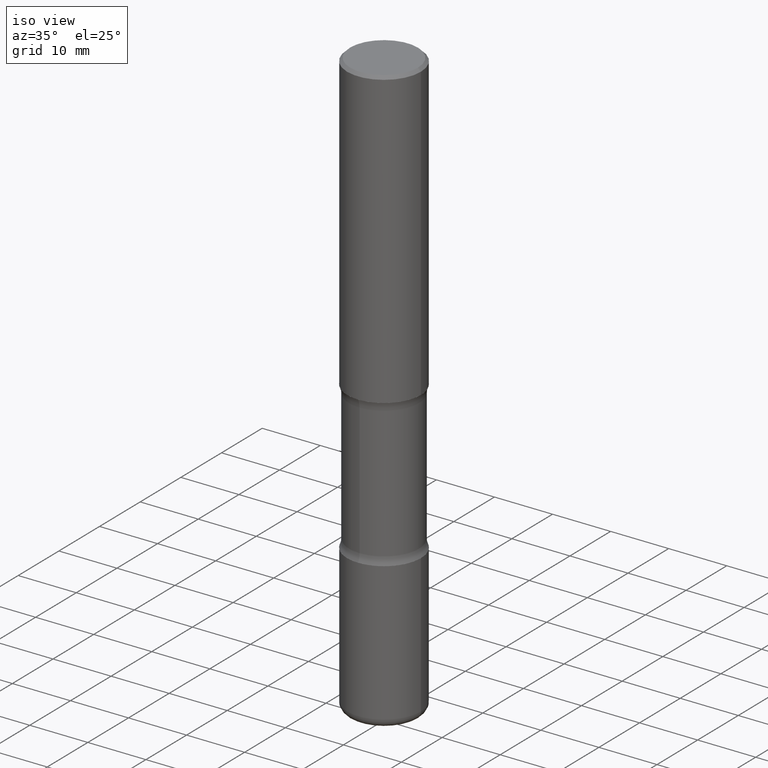
[diagram: clean part render]
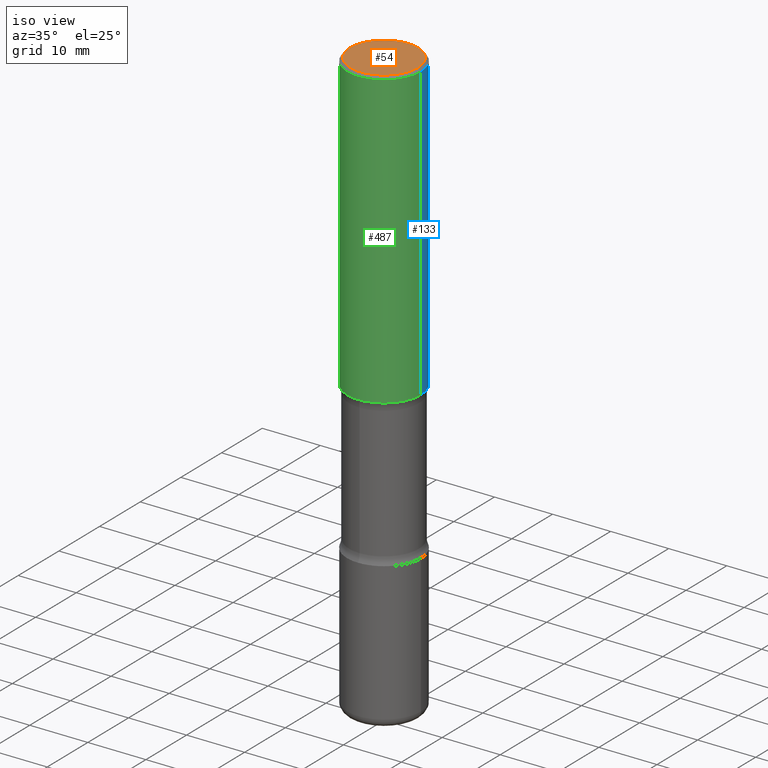
[diagram: same view with three faces highlighted in distinct colors, each labeled with its STEP entity id]
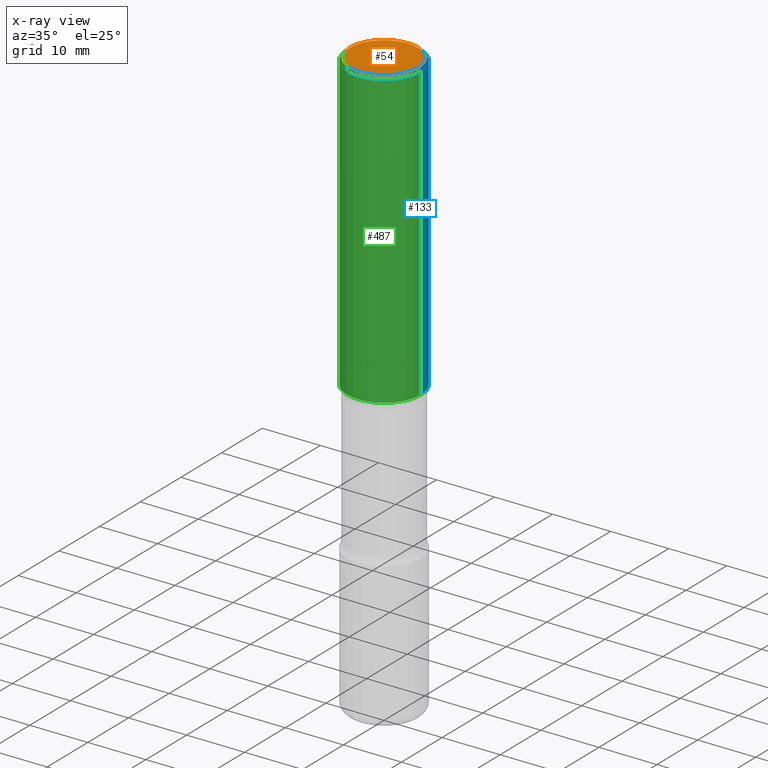
[diagram: x-ray of the same camera — body ghosted, the three highlighted faces saturated]
A machine part, iso view with three faces highlighted in distinct colors.
The next image is the same camera in x-ray (body ghosted, the three faces saturated) — at least one of them is partly hidden behind the body in this view.
Their STEP definitions:

[orange] entity #54 — the highlighted planar face has unit normal (0, -0, -1).
#54 = ADVANCED_FACE ( 'NONE', ( #369 ), #187, .F. ) ;
#59 = AXIS2_PLACEMENT_3D ( 'NONE', #378, #244, #376 ) ;
#61 = DIRECTION ( 'NONE',  ( 1.000000000000000000, -6.982962677686267499E-15, 4.876176775795936353E-29 ) ) ;
#147 = CARTESIAN_POINT ( 'NONE',  ( 1.606081415867840476E-15, 0.2299999999999998990, -8.030407079339231961E-16 ) ) ;
#187 = PLANE ( 'NONE',  #506 ) ;
#236 = AXIS2_PLACEMENT_3D ( 'NONE', #453, #449, #61 ) ;
#244 = DIRECTION ( 'NONE',  ( -2.445468806185136597E-29, 3.491481338843145583E-15, 1.000000000000000000 ) ) ;
#268 = ORIENTED_EDGE ( 'NONE', *, *, #337, .T. ) ;
#282 = DIRECTION ( 'NONE',  ( 2.438088387897960049E-29, -3.491481338843145188E-15, -1.000000000000000000 ) ) ;
#310 = CIRCLE ( 'NONE', #59, 0.2299999999999998990 ) ;
#313 = EDGE_LOOP ( 'NONE', ( #268, #512 ) ) ;
#337 = EDGE_CURVE ( 'NONE', #480, #464, #507, .T. ) ;
#369 = FACE_OUTER_BOUND ( 'NONE', #313, .T. ) ;
#376 = DIRECTION ( 'NONE',  ( 1.000000000000000000, -6.982962677686267499E-15, 4.876176775795936353E-29 ) ) ;
#378 = CARTESIAN_POINT ( 'NONE',  ( 0.000000000000000000, 0.000000000000000000, 0.000000000000000000 ) ) ;
#430 = CARTESIAN_POINT ( 'NONE',  ( -0.2299999999999998990, 1.640996229256271928E-15, -1.135408596578605420E-29 ) ) ;
#446 = CARTESIAN_POINT ( 'NONE',  ( 0.2299999999999998990, -1.681434332853598617E-15, 1.149527484987432660E-29 ) ) ;
#449 = DIRECTION ( 'NONE',  ( -2.445468806185136597E-29, 3.491481338843145583E-15, 1.000000000000000000 ) ) ;
#453 = CARTESIAN_POINT ( 'NONE',  ( 0.000000000000000000, 0.000000000000000000, 0.000000000000000000 ) ) ;
#464 = VERTEX_POINT ( 'NONE', #446 ) ;
#480 = VERTEX_POINT ( 'NONE', #430 ) ;
#506 = AXIS2_PLACEMENT_3D ( 'NONE', #147, #282, #528 ) ;
#507 = CIRCLE ( 'NONE', #236, 0.2299999999999998990 ) ;
#512 = ORIENTED_EDGE ( 'NONE', *, *, #523, .T. ) ;
#523 = EDGE_CURVE ( 'NONE', #464, #480, #310, .T. ) ;
#528 = DIRECTION ( 'NONE',  ( -1.000000000000000000, 6.982962677686265922E-15, -4.876176775795935793E-29 ) ) ;

[blue] entity #133 — the highlighted cylindrical surface (partial cylindrical patch) has radius 6.35 mm, axis along (-0, 0, 1).
#2 = VERTEX_POINT ( 'NONE', #50 ) ;
#21 = DIRECTION ( 'NONE',  ( -2.445468806185136597E-29, 3.491481338843145583E-15, 1.000000000000000000 ) ) ;
#27 = DIRECTION ( 'NONE',  ( 1.000000000000000000, -6.982962677686265922E-15, 0.000000000000000000 ) ) ;
#32 = EDGE_CURVE ( 'NONE', #392, #2, #488, .T. ) ;
#50 = CARTESIAN_POINT ( 'NONE',  ( -0.2499999999999999167, 1.675911042644703182E-15, -0.02000000000000006981 ) ) ;
#108 = AXIS2_PLACEMENT_3D ( 'NONE', #255, #504, #379 ) ;
#122 = VERTEX_POINT ( 'NONE', #532 ) ;
#133 = ADVANCED_FACE ( 'NONE', ( #324 ), #422, .T. ) ;
#149 = EDGE_CURVE ( 'NONE', #122, #2, #300, .T. ) ;
#155 = CARTESIAN_POINT ( 'NONE',  ( -0.2500000000000000555, 1.776356839400250859E-15, -1.229733772563726866E-29 ) ) ;
#157 = DIRECTION ( 'NONE',  ( -2.445468806185136877E-29, 3.491481338843145188E-15, 1.000000000000000000 ) ) ;
#180 = CIRCLE ( 'NONE', #463, 0.2500000000000001665 ) ;
#181 = DIRECTION ( 'NONE',  ( -2.445468806185136597E-29, 3.491481338843145583E-15, 1.000000000000000000 ) ) ;
#186 = CARTESIAN_POINT ( 'NONE',  ( 0.2499999999999999167, -1.784954126219745400E-15, -0.02000000000000006981 ) ) ;
#221 = CARTESIAN_POINT ( 'NONE',  ( 4.890937612370289799E-31, -6.982962677686315028E-17, -0.02000000000000006981 ) ) ;
#248 = CARTESIAN_POINT ( 'NONE',  ( 4.890937612370273194E-29, -6.982962677686291165E-15, -2.000000000000000000 ) ) ;
#252 = CARTESIAN_POINT ( 'NONE',  ( 0.2500000000000000555, -1.745740669421567269E-15, 1.219044193948984228E-29 ) ) ;
#255 = CARTESIAN_POINT ( 'NONE',  ( 0.000000000000000000, 0.000000000000000000, 0.000000000000000000 ) ) ;
#261 = VECTOR ( 'NONE', #157, 39.37007874015748143 ) ;
#298 = ORIENTED_EDGE ( 'NONE', *, *, #490, .T. ) ;
#300 = LINE ( 'NONE', #155, #261 ) ;
#324 = FACE_OUTER_BOUND ( 'NONE', #419, .T. ) ;
#349 = ORIENTED_EDGE ( 'NONE', *, *, #149, .T. ) ;
#352 = DIRECTION ( 'NONE',  ( -2.445468806185136877E-29, 3.491481338843145188E-15, 1.000000000000000000 ) ) ;
#359 = CARTESIAN_POINT ( 'NONE',  ( 0.2500000000000001665, -8.728703347107858632E-15, -2.000000000000000000 ) ) ;
#361 = ORIENTED_EDGE ( 'NONE', *, *, #525, .F. ) ;
#375 = VECTOR ( 'NONE', #352, 39.37007874015748143 ) ;
#379 = DIRECTION ( 'NONE',  ( 1.000000000000000000, -6.982962677686267499E-15, 4.876176775795935793E-29 ) ) ;
#392 = VERTEX_POINT ( 'NONE', #186 ) ;
#396 = ORIENTED_EDGE ( 'NONE', *, *, #32, .F. ) ;
#419 = EDGE_LOOP ( 'NONE', ( #298, #349, #396, #361 ) ) ;
#422 = CYLINDRICAL_SURFACE ( 'NONE', #108, 0.2500000000000000555 ) ;
#445 = VERTEX_POINT ( 'NONE', #359 ) ;
#461 = AXIS2_PLACEMENT_3D ( 'NONE', #221, #181, #522 ) ;
#463 = AXIS2_PLACEMENT_3D ( 'NONE', #248, #21, #27 ) ;
#467 = LINE ( 'NONE', #252, #375 ) ;
#488 = CIRCLE ( 'NONE', #461, 0.2499999999999999167 ) ;
#490 = EDGE_CURVE ( 'NONE', #445, #122, #180, .T. ) ;
#504 = DIRECTION ( 'NONE',  ( -2.445468806185136597E-29, 3.491481338843145583E-15, 1.000000000000000000 ) ) ;
#522 = DIRECTION ( 'NONE',  ( 1.000000000000000000, -6.982962677686267499E-15, 0.000000000000000000 ) ) ;
#525 = EDGE_CURVE ( 'NONE', #445, #392, #467, .T. ) ;
#532 = CARTESIAN_POINT ( 'NONE',  ( -0.2500000000000001665, -1.750039312831323809E-15, -2.000000000000000000 ) ) ;

[green] entity #487 — the highlighted cylindrical surface (partial cylindrical patch) has radius 6.35 mm, axis along (-0, 0, 1).
#2 = VERTEX_POINT ( 'NONE', #50 ) ;
#50 = CARTESIAN_POINT ( 'NONE',  ( -0.2499999999999999167, 1.675911042644703182E-15, -0.02000000000000006981 ) ) ;
#81 = ORIENTED_EDGE ( 'NONE', *, *, #277, .F. ) ;
#97 = ORIENTED_EDGE ( 'NONE', *, *, #149, .F. ) ;
#112 = DIRECTION ( 'NONE',  ( -2.445468806185136597E-29, 3.491481338843145583E-15, 1.000000000000000000 ) ) ;
#118 = DIRECTION ( 'NONE',  ( -2.445468806185136597E-29, 3.491481338843145583E-15, 1.000000000000000000 ) ) ;
#122 = VERTEX_POINT ( 'NONE', #532 ) ;
#125 = AXIS2_PLACEMENT_3D ( 'NONE', #338, #118, #296 ) ;
#141 = DIRECTION ( 'NONE',  ( -2.445468806185136597E-29, 3.491481338843145583E-15, 1.000000000000000000 ) ) ;
#149 = EDGE_CURVE ( 'NONE', #122, #2, #300, .T. ) ;
#155 = CARTESIAN_POINT ( 'NONE',  ( -0.2500000000000000555, 1.776356839400250859E-15, -1.229733772563726866E-29 ) ) ;
#157 = DIRECTION ( 'NONE',  ( -2.445468806185136877E-29, 3.491481338843145188E-15, 1.000000000000000000 ) ) ;
#159 = ORIENTED_EDGE ( 'NONE', *, *, #525, .T. ) ;
#185 = ORIENTED_EDGE ( 'NONE', *, *, #333, .T. ) ;
#186 = CARTESIAN_POINT ( 'NONE',  ( 0.2499999999999999167, -1.784954126219745400E-15, -0.02000000000000006981 ) ) ;
#194 = AXIS2_PLACEMENT_3D ( 'NONE', #473, #141, #442 ) ;
#195 = DIRECTION ( 'NONE',  ( 1.000000000000000000, -6.982962677686267499E-15, 4.876176775795935793E-29 ) ) ;
#238 = CYLINDRICAL_SURFACE ( 'NONE', #412, 0.2500000000000000555 ) ;
#252 = CARTESIAN_POINT ( 'NONE',  ( 0.2500000000000000555, -1.745740669421567269E-15, 1.219044193948984228E-29 ) ) ;
#261 = VECTOR ( 'NONE', #157, 39.37007874015748143 ) ;
#277 = EDGE_CURVE ( 'NONE', #2, #392, #560, .T. ) ;
#280 = CIRCLE ( 'NONE', #194, 0.2500000000000001665 ) ;
#295 = FACE_OUTER_BOUND ( 'NONE', #304, .T. ) ;
#296 = DIRECTION ( 'NONE',  ( 1.000000000000000000, -6.982962677686267499E-15, 0.000000000000000000 ) ) ;
#300 = LINE ( 'NONE', #155, #261 ) ;
#304 = EDGE_LOOP ( 'NONE', ( #97, #185, #159, #81 ) ) ;
#333 = EDGE_CURVE ( 'NONE', #122, #445, #280, .T. ) ;
#338 = CARTESIAN_POINT ( 'NONE',  ( 4.890937612370289799E-31, -6.982962677686315028E-17, -0.02000000000000006981 ) ) ;
#352 = DIRECTION ( 'NONE',  ( -2.445468806185136877E-29, 3.491481338843145188E-15, 1.000000000000000000 ) ) ;
#359 = CARTESIAN_POINT ( 'NONE',  ( 0.2500000000000001665, -8.728703347107858632E-15, -2.000000000000000000 ) ) ;
#375 = VECTOR ( 'NONE', #352, 39.37007874015748143 ) ;
#392 = VERTEX_POINT ( 'NONE', #186 ) ;
#412 = AXIS2_PLACEMENT_3D ( 'NONE', #415, #112, #195 ) ;
#415 = CARTESIAN_POINT ( 'NONE',  ( 0.000000000000000000, 0.000000000000000000, 0.000000000000000000 ) ) ;
#442 = DIRECTION ( 'NONE',  ( 1.000000000000000000, -6.982962677686265922E-15, 0.000000000000000000 ) ) ;
#445 = VERTEX_POINT ( 'NONE', #359 ) ;
#467 = LINE ( 'NONE', #252, #375 ) ;
#473 = CARTESIAN_POINT ( 'NONE',  ( 4.890937612370273194E-29, -6.982962677686291165E-15, -2.000000000000000000 ) ) ;
#487 = ADVANCED_FACE ( 'NONE', ( #295 ), #238, .T. ) ;
#525 = EDGE_CURVE ( 'NONE', #445, #392, #467, .T. ) ;
#532 = CARTESIAN_POINT ( 'NONE',  ( -0.2500000000000001665, -1.750039312831323809E-15, -2.000000000000000000 ) ) ;
#560 = CIRCLE ( 'NONE', #125, 0.2499999999999999167 ) ;